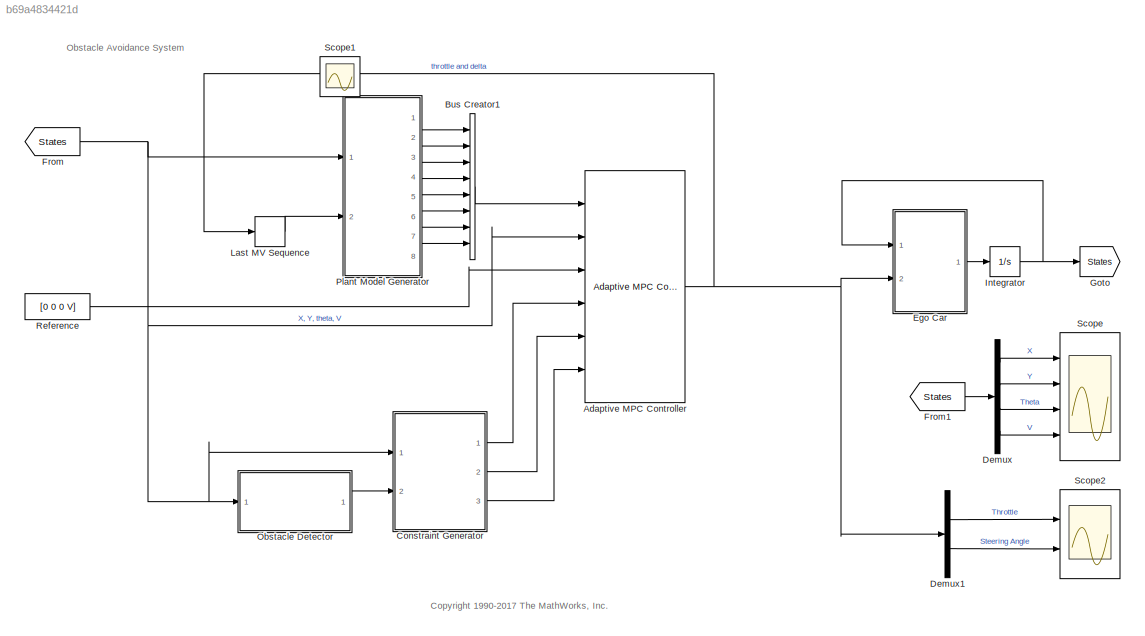
MODEL slx_b69a4834421d
KIND model
CONFIG AbsTol = auto
CONFIG EnableMultiTasking = on
CONFIG FixedStep = auto
CONFIG MaxStep = 1e-3
CONFIG MinStep = auto
CONFIG RelTol = 1e-3
CONFIG SampleTimeConstraint = Unconstrained
CONFIG Solver = VariableStepAuto
CONFIG SolverName = VariableStepAuto
CONFIG StartTime = 0.0
CONFIG StopTime = 5
BLOCK [Reference] Adaptive MPC Controller  REF=mpclib/Adaptive MPC Controller  (lib defined in mdl_ae329e0e0455)
  Ports = [6, 1]
  SCDEnableBlockLinearizationSpecification = on
  SourceBlock = mpclib/Adaptive MPC Controller
  SourceProductBaseCode = MP
  SourceProductName = Model Predictive Control Toolbox
  SourceType = Adaptive MPC
BLOCK [BusCreator] Bus Creator1
  DisplayOption = bar
  InheritFromInputs = on
  Inputs = 8
  Ports = [8, 1]
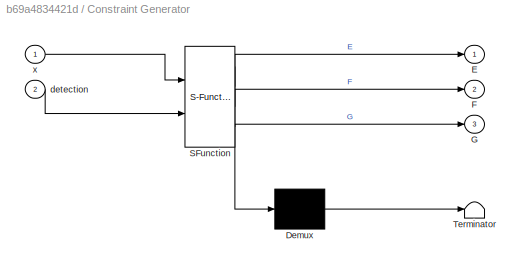
BLOCK [SubSystem] Constraint Generator
  ErrorFcn = Stateflow.Translate.translate
  PermitHierarchicalResolution = ExplicitOnly
  Ports = [2, 3]
  RequestExecContextInheritance = off
  SFBlockType = MATLAB Function
  TreatAsAtomicUnit = on
  Variant = off
BLOCK [Demux] Constraint Generator/ Demux 
  Outputs = 1
  Ports = [1, 1]
BLOCK [S-Function] Constraint Generator/ SFunction 
  EnableBusSupport = on
  FunctionName = sf_sfun
  Parameters = laneWidth,lanes,obstacle
  PortCounts = [2 4]
  Ports = [2, 4]
  SFcnIsStateOwnerBlock = off
  SFunctionDeploymentMode = off
  Tag = Stateflow S-Function mpc_ObstacleAvoidance 4
BLOCK [Terminator] Constraint Generator/ Terminator 
BLOCK [Outport] Constraint Generator/E
  IconDisplay = Port number
BLOCK [Outport] Constraint Generator/F
  IconDisplay = Port number
  Port = 2
BLOCK [Outport] Constraint Generator/G
  IconDisplay = Port number
  Port = 3
BLOCK [Inport] Constraint Generator/detection
  IconDisplay = Port number
  Port = 2
BLOCK [Inport] Constraint Generator/x
  IconDisplay = Port number
BLOCK [Demux] Demux
  DisplayOption = bar
  Ports = [1, 4]
BLOCK [Demux] Demux1
  DisplayOption = bar
  Outputs = 2
  Ports = [1, 2]
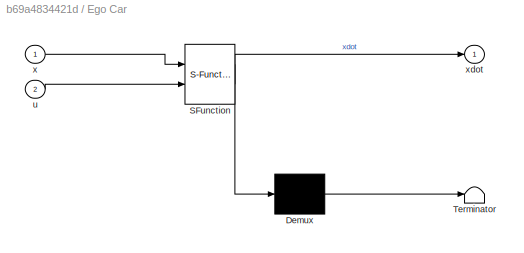
BLOCK [SubSystem] Ego Car
  ErrorFcn = Stateflow.Translate.translate
  PermitHierarchicalResolution = ExplicitOnly
  Ports = [2, 1]
  RequestExecContextInheritance = off
  SFBlockType = MATLAB Function
  TreatAsAtomicUnit = on
  Variant = off
BLOCK [Demux] Ego Car/ Demux 
  Outputs = 1
  Ports = [1, 1]
BLOCK [S-Function] Ego Car/ SFunction 
  EnableBusSupport = on
  FunctionName = sf_sfun
  PortCounts = [2 2]
  Ports = [2, 2]
  SFcnIsStateOwnerBlock = off
  SFunctionDeploymentMode = off
  Tag = Stateflow S-Function mpc_ObstacleAvoidance 1
BLOCK [Terminator] Ego Car/ Terminator 
BLOCK [Inport] Ego Car/u
  IconDisplay = Port number
  Port = 2
BLOCK [Inport] Ego Car/x
  IconDisplay = Port number
BLOCK [Outport] Ego Car/xdot
  IconDisplay = Port number
BLOCK [From] From
  GotoTag = States
BLOCK [From] From1
  GotoTag = States
BLOCK [Goto] Goto
  GotoTag = States
BLOCK [Integrator] Integrator
  InitialCondition = x0
  Ports = [1, 1]
BLOCK [Memory] Last MV Sequence
  InheritSampleTime = on
  InitialCondition = u0
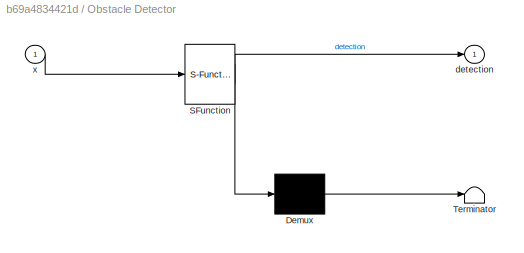
BLOCK [SubSystem] Obstacle Detector
  ErrorFcn = Stateflow.Translate.translate
  PermitHierarchicalResolution = ExplicitOnly
  Ports = [1, 1]
  RequestExecContextInheritance = off
  SFBlockType = MATLAB Function
  TreatAsAtomicUnit = on
  Variant = off
BLOCK [Demux] Obstacle Detector/ Demux 
  Outputs = 1
  Ports = [1, 1]
BLOCK [S-Function] Obstacle Detector/ SFunction 
  EnableBusSupport = on
  FunctionName = sf_sfun
  Parameters = laneWidth,obstacle
  PortCounts = [1 2]
  Ports = [1, 2]
  SFcnIsStateOwnerBlock = off
  SFunctionDeploymentMode = off
  Tag = Stateflow S-Function mpc_ObstacleAvoidance 3
BLOCK [Terminator] Obstacle Detector/ Terminator 
BLOCK [Outport] Obstacle Detector/detection
  IconDisplay = Port number
BLOCK [Inport] Obstacle Detector/x
  IconDisplay = Port number
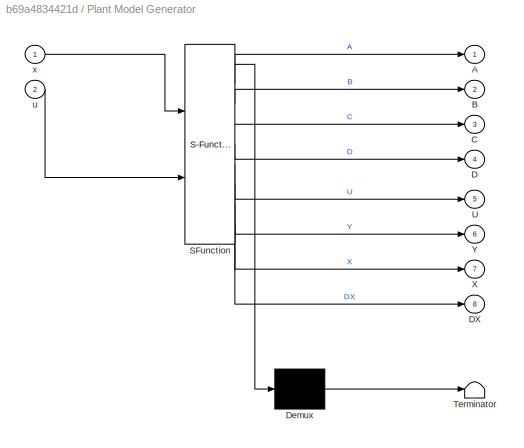
BLOCK [SubSystem] Plant Model Generator
  ErrorFcn = Stateflow.Translate.translate
  PermitHierarchicalResolution = ExplicitOnly
  Ports = [2, 8]
  RequestExecContextInheritance = off
  SFBlockType = MATLAB Function
  TreatAsAtomicUnit = on
  Variant = off
BLOCK [Demux] Plant Model Generator/ Demux 
  Outputs = 1
  Ports = [1, 1]
BLOCK [S-Function] Plant Model Generator/ SFunction 
  EnableBusSupport = on
  FunctionName = sf_sfun
  Parameters = Ts
  PortCounts = [2 9]
  Ports = [2, 9]
  SFcnIsStateOwnerBlock = off
  SFunctionDeploymentMode = off
  Tag = Stateflow S-Function mpc_ObstacleAvoidance 2
BLOCK [Terminator] Plant Model Generator/ Terminator 
BLOCK [Outport] Plant Model Generator/A
  IconDisplay = Port number
BLOCK [Outport] Plant Model Generator/B
  IconDisplay = Port number
  Port = 2
BLOCK [Outport] Plant Model Generator/C
  IconDisplay = Port number
  Port = 3
BLOCK [Outport] Plant Model Generator/D
  IconDisplay = Port number
  Port = 4
BLOCK [Outport] Plant Model Generator/DX
  IconDisplay = Port number
  Port = 8
BLOCK [Outport] Plant Model Generator/U
  IconDisplay = Port number
  Port = 5
BLOCK [Outport] Plant Model Generator/X
  IconDisplay = Port number
  Port = 7
BLOCK [Outport] Plant Model Generator/Y
  IconDisplay = Port number
  Port = 6
BLOCK [Inport] Plant Model Generator/u
  IconDisplay = Port number
  Port = 2
BLOCK [Inport] Plant Model Generator/x
  IconDisplay = Port number
BLOCK [Constant] Reference
  Value = [0 0 0 V]
BLOCK [Scope] Scope
  NumInputPorts = 4
  Ports = [4]
  ScopeSpecificationString = Simulink.scopes.TimeScopeBlockCfg('CurrentConfiguration', extmgr.ConfigurationSet(extmgr.Configuration('Core','General UI',true),extmgr.Configuration('Core','Source UI',true),extmgr.Configuration('Sources','WiredSimulink',true,'DataLoggingSaveFormat','StructureWithTime','DataLoggingDecimation','1','DataLoggingDecimateData',true),extmgr.Configuration('Visuals','Time Domain',true,'SerializedDisplays...<+3610ch>
BLOCK [Scope] Scope1
  IOType = viewer
  NumInputPorts = 1
  Ports = []
  ScopeSpecificationString = Simulink.scopes.TimeScopeBlockCfg('CurrentConfiguration', extmgr.ConfigurationSet(extmgr.Configuration('Core','General UI',true),extmgr.Configuration('Core','Source UI',true),extmgr.Configuration('Sources','WiredSimulink',true,'DataLoggingMaxPoints','7500','DataLoggingLimitDataPoints',true,'DataLoggingSaveFormat','Array','DataLoggingDecimation','1','DataLoggingDecimateData',true),extmgr.Configurat...<+1708ch>
BLOCK [Scope] Scope2
  NumInputPorts = 2
  Ports = [2]
  ScopeSpecificationString = Simulink.scopes.TimeScopeBlockCfg('CurrentConfiguration', extmgr.ConfigurationSet(extmgr.Configuration('Core','General UI',true),extmgr.Configuration('Core','Source UI',true),extmgr.Configuration('Sources','WiredSimulink',true,'DataLoggingSaveFormat','StructureWithTime','DataLoggingDecimation','1','DataLoggingDecimateData',true,'DataLoggingVariableName','ScopeData1'),extmgr.Configuration('Visuals'...<+2281ch>
ANNOTATION (root): <copyright redacted>
ANNOTATION (root): Obstacle Avoidance System
NET Adaptive MPC Controller:1 -> Demux1:1, Ego Car:2, Last MV Sequence:1
LINE Bus Creator1:1 -> Adaptive MPC Controller:1
LINE Constraint Generator:1 -> Adaptive MPC Controller:4
LINE Constraint Generator:2 -> Adaptive MPC Controller:5
LINE Constraint Generator:3 -> Adaptive MPC Controller:6
LINE Demux1:1 -> Scope2:1
LINE Demux1:2 -> Scope2:2
LINE Demux:1 -> Scope:1
LINE Demux:2 -> Scope:2
LINE Demux:3 -> Scope:3
LINE Demux:4 -> Scope:4
LINE Ego Car:1 -> Integrator:1
LINE From1:1 -> Demux:1
NET From:1 -> Adaptive MPC Controller:2, Constraint Generator:1, Obstacle Detector:1, Plant Model Generator:1
NET Integrator:1 -> Ego Car:1, Goto:1
LINE Last MV Sequence:1 -> Plant Model Generator:2
LINE Obstacle Detector:1 -> Constraint Generator:2
LINE Plant Model Generator:1 -> Bus Creator1:1
LINE Plant Model Generator:2 -> Bus Creator1:2
LINE Plant Model Generator:3 -> Bus Creator1:3
LINE Plant Model Generator:4 -> Bus Creator1:4
LINE Plant Model Generator:5 -> Bus Creator1:5
LINE Plant Model Generator:6 -> Bus Creator1:6
LINE Plant Model Generator:7 -> Bus Creator1:7
LINE Plant Model Generator:8 -> Bus Creator1:8
LINE Reference:1 -> Adaptive MPC Controller:3
note: NET lines group one-source signal fan-out (src -> all destinations, sorted); 1:1 wires keep LINE
CHART Ego Car states=1 transitions=1
  STATE_LABEL 'eML_blk_kernel()'
  STATE_LABEL 'SCRIPT:\nfunction xdot = fcn(x,u)\nxdot = obstacleVehicleModelCT(x,u);\n'
CHART Plant Model Generator states=1 transitions=1
  STATE_LABEL 'eML_blk_kernel()'
  STATE_LABEL 'SCRIPT:\nfunction [A,B,C,D,U,Y,X,DX] = fcn(x,u,Ts)\n[A,B,C,D,U,Y,X,DX] = obstacleVehicleModelDT(Ts,x,u);\n'
CHART Obstacle Detector states=1 transitions=1
  STATE_LABEL 'eML_blk_kernel()'
  STATE_LABEL 'SCRIPT:\nfunction detection  = fcn(x,obstacle,laneWidth)\n% Detection Logic: it determine when the vehicle sees the obstacle\ndetection = obstacleDetect(x,obstacle,laneWidth);\n'
CHART Constraint Generator states=1 transitions=1
  STATE_LABEL 'eML_blk_kernel()'
  STATE_LABEL 'SCRIPT:\nfunction [E,F,G] = fcn(x,detection,obstacle,laneWidth,lanes)\n% Generate run-time custom constraint\n[E,F,G] = obstacleComputeCustomConstraint(x,detection,obstacle,laneWidth,lanes);\n'
